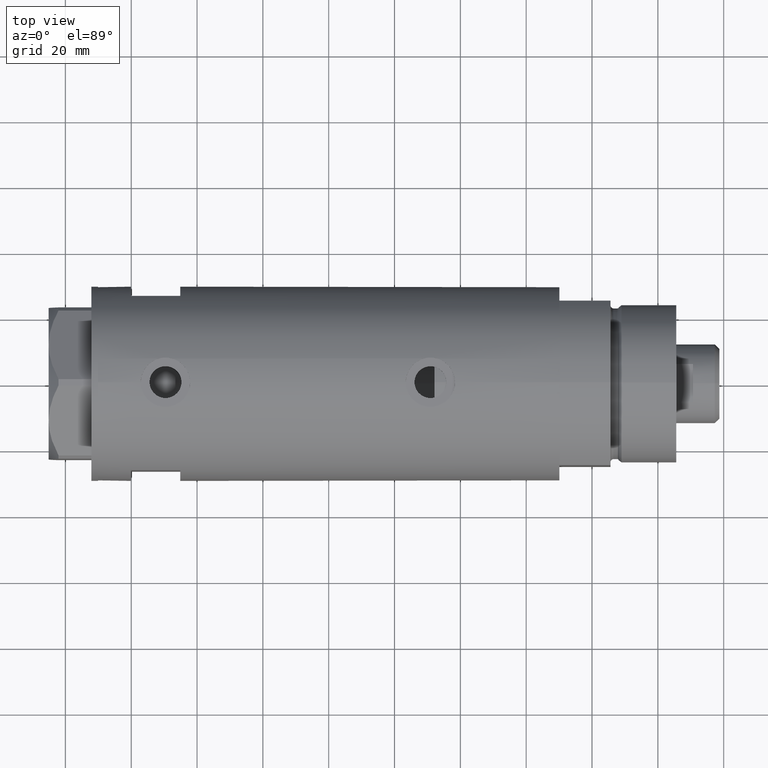
[diagram: clean part render]
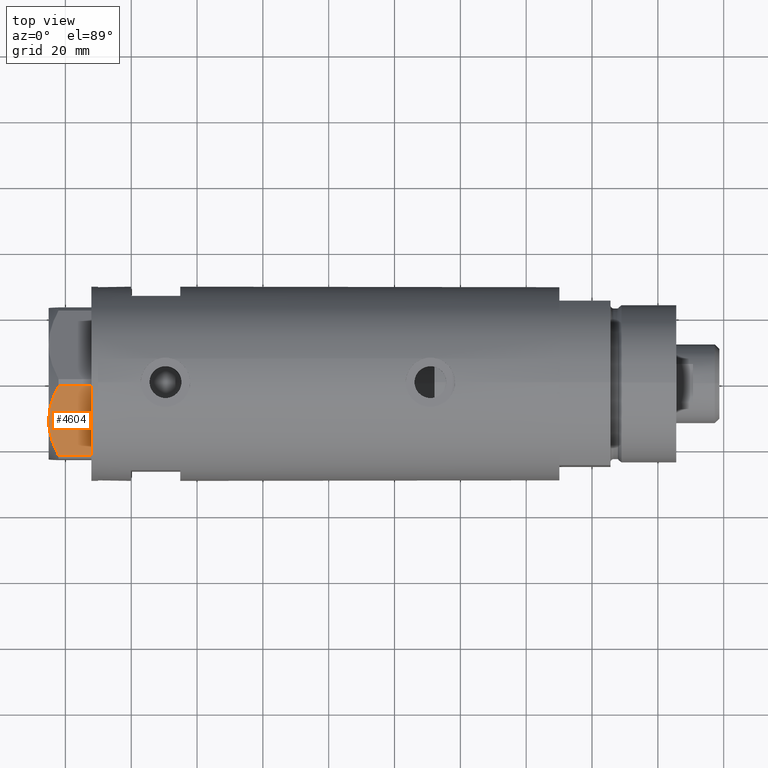
[diagram: same view with one face highlighted and labeled with its STEP entity id]
A machine part, top view. The second image highlights one B-rep face of the part: STEP entity #4604.
In plain terms, the highlighted planar face has unit normal (-0, 0.5, -0.866).
Its self-contained STEP definition (entity closure, byte-faithful):
#54 = VERTEX_POINT ( 'NONE', #1323 ) ;
#61 = CARTESIAN_POINT ( 'NONE',  ( -11.95865151389046588, -19.65378171203314395, 13.00000000000009948 ) ) ;
#85 = CARTESIAN_POINT ( 'NONE',  ( -22.03005154776146313, -13.83905619136139364, 9.983800287807548912 ) ) ;
#134 = ORIENTED_EDGE ( 'NONE', *, *, #906, .T. ) ;
#306 = CARTESIAN_POINT ( 'NONE',  ( -5.671686373602661035, -23.28356272816404271, 12.04068176582933702 ) ) ;
#358 = CARTESIAN_POINT ( 'NONE',  ( -22.99999999999990408, -13.27905619136147841, 0.000000000000000000 ) ) ;
#385 = VECTOR ( 'NONE', #989, 1000.000000000000000 ) ;
#619 = CARTESIAN_POINT ( 'NONE',  ( -0.9699484522383853280, -25.99811238272275205, 9.983800287807632401 ) ) ;
#641 = CARTESIAN_POINT ( 'NONE',  ( -1.799196345396643304, -25.51934588838291162, 10.43131750950939640 ) ) ;
#699 = CARTESIAN_POINT ( 'NONE',  ( -11.49999999999990585, -19.91858428704219364, 13.00000000000000000 ) ) ;
#717 = CARTESIAN_POINT ( 'NONE',  ( -5.229981517797923196, -23.53858114556527781, 11.89212886775844602 ) ) ;
#818 = ORIENTED_EDGE ( 'NONE', *, *, #1019, .T. ) ;
#877 = CARTESIAN_POINT ( 'NONE',  ( -20.37350567916426058, -14.79546339452093662, 10.87778242614345992 ) ) ;
#902 = CARTESIAN_POINT ( 'NONE',  ( -16.05322244309625290, -17.28978008384019915, 12.42689993760378542 ) ) ;
#906 = EDGE_CURVE ( 'NONE', #4004, #3309, #4233, .T. ) ;
#960 = CARTESIAN_POINT ( 'NONE',  ( -22.99999999999990408, -13.27905619136147841, 13.00000000000000000 ) ) ;
#989 = DIRECTION ( 'NONE',  ( 0.000000000000000000, 0.000000000000000000, 1.000000000000000000 ) ) ;
#990 = EDGE_CURVE ( 'NONE', #1009, #3309, #3388, .T. ) ;
#1009 = VERTEX_POINT ( 'NONE', #699 ) ;
#1019 = EDGE_CURVE ( 'NONE', #54, #4004, #4769, .T. ) ;
#1214 = CARTESIAN_POINT ( 'NONE',  ( -15.16323225988328893, -17.80361615569431777, 12.63731396715695077 ) ) ;
#1317 = CARTESIAN_POINT ( 'NONE',  ( -11.49999999999990585, -19.91858428704219364, 13.00000000000000000 ) ) ;
#1323 = CARTESIAN_POINT ( 'NONE',  ( -22.03005154776132102, -13.83905619136147536, 0.000000000000000000 ) ) ;
#1342 = CARTESIAN_POINT ( 'NONE',  ( -0.9699484522383907681, -25.99811238272274494, 13.00000000000000000 ) ) ;
#1371 = CARTESIAN_POINT ( 'NONE',  ( -9.678244919010003500, -20.97037507344916563, 13.00000000000009237 ) ) ;
#1554 = EDGE_CURVE ( 'NONE', #1745, #1009, #4413, .T. ) ;
#1557 = CARTESIAN_POINT ( 'NONE',  ( -13.34348161667001698, -18.85424967941148822, 12.90784227772843806 ) ) ;
#1650 = VECTOR ( 'NONE', #2540, 1000.000000000000000 ) ;
#1690 = DIRECTION ( 'NONE',  ( -0.8660254037844415942, 0.4999999999999950040, 0.000000000000000000 ) ) ;
#1742 = LINE ( 'NONE', #2126, #2060 ) ;
#1745 = VERTEX_POINT ( 'NONE', #2233 ) ;
#1809 = ORIENTED_EDGE ( 'NONE', *, *, #3211, .T. ) ;
#2060 = VECTOR ( 'NONE', #3962, 1000.000000000000000 ) ;
#2080 = DIRECTION ( 'NONE',  ( 0.4999999999999950040, 0.8660254037844415942, -0.000000000000000000 ) ) ;
#2126 = CARTESIAN_POINT ( 'NONE',  ( -22.03005154776132102, -13.83905619136147536, 13.00000000000000000 ) ) ;
#2155 = CARTESIAN_POINT ( 'NONE',  ( -0.9699484522383853280, -25.99811238272275205, 9.983800287807632401 ) ) ;
#2198 = CARTESIAN_POINT ( 'NONE',  ( -2.640413878806567638, -25.03366871902166935, 10.84420102443839262 ) ) ;
#2233 = CARTESIAN_POINT ( 'NONE',  ( -22.03005154776146313, -13.83905619136139364, 9.983800287807548912 ) ) ;
#2363 = ORIENTED_EDGE ( 'NONE', *, *, #1554, .F. ) ;
#2540 = DIRECTION ( 'NONE',  ( 0.8660254037844415942, -0.4999999999999950595, 0.000000000000000000 ) ) ;
#2805 = PLANE ( 'NONE',  #3616 ) ;
#2890 = CARTESIAN_POINT ( 'NONE',  ( -0.9699484522383873264, -25.99811238272275205, 0.000000000000000000 ) ) ;
#3001 = ORIENTED_EDGE ( 'NONE', *, *, #990, .F. ) ;
#3039 = CARTESIAN_POINT ( 'NONE',  ( -12.41906678023023325, -19.38796083407287085, 12.98168640760950865 ) ) ;
#3076 = EDGE_LOOP ( 'NONE', ( #2363, #1809, #818, #134, #3001 ) ) ;
#3211 = EDGE_CURVE ( 'NONE', #1745, #54, #1742, .T. ) ;
#3222 = CARTESIAN_POINT ( 'NONE',  ( -4.357207709415887642, -24.04247733877630466, 11.57055225522972819 ) ) ;
#3309 = VERTEX_POINT ( 'NONE', #2155 ) ;
#3320 = CARTESIAN_POINT ( 'NONE',  ( -7.884645426989515649, -22.00591022298554833, 12.70765172847701052 ) ) ;
#3388 = B_SPLINE_CURVE_WITH_KNOTS ( 'NONE', 3,
 ( #1317, #1371, #3320, #306, #717, #3222, #3651, #2198, #641, #619 ),
 .UNSPECIFIED., .F., .F.,
 ( 4, 2, 2, 2, 4 ),
 ( 0.01376519981810312224, 0.01998941321701588891, 0.02154546656674407451, 0.02310151991647226705, 0.02621362661592864171 ),
 .UNSPECIFIED. ) ;
#3450 = CARTESIAN_POINT ( 'NONE',  ( -11.49999999999990585, -19.91858428704219364, 13.00000000000000000 ) ) ;
#3616 = AXIS2_PLACEMENT_3D ( 'NONE', #960, #2080, #1690 ) ;
#3651 = CARTESIAN_POINT ( 'NONE',  ( -3.925137811029895563, -24.29193301091818213, 11.39727285399141365 ) ) ;
#3827 = CARTESIAN_POINT ( 'NONE',  ( -18.67981377008999644, -15.77331687414923422, 11.62937486882610827 ) ) ;
#3962 = DIRECTION ( 'NONE',  ( -0.000000000000000000, 0.000000000000000000, -1.000000000000000000 ) ) ;
#4004 = VERTEX_POINT ( 'NONE', #2890 ) ;
#4173 = CARTESIAN_POINT ( 'NONE',  ( -13.80210138309694479, -18.58946543380922378, 12.85271263895580418 ) ) ;
#4233 = LINE ( 'NONE', #1342, #385 ) ;
#4255 = FACE_OUTER_BOUND ( 'NONE', #3076, .T. ) ;
#4413 = B_SPLINE_CURVE_WITH_KNOTS ( 'NONE', 3,
 ( #85, #877, #3827, #902, #1214, #4173, #1557, #3039, #61, #3450 ),
 .UNSPECIFIED., .F., .F.,
 ( 4, 2, 2, 2, 4 ),
 ( 0.001228959670438515206, 0.007497079744270818830, 0.01063113978118697053, 0.01219816979964504639, 0.01376519981810312224 ),
 .UNSPECIFIED. ) ;
#4604 = ADVANCED_FACE ( 'NONE', ( #4255 ), #2805, .F. ) ;
#4769 = LINE ( 'NONE', #358, #1650 ) ;